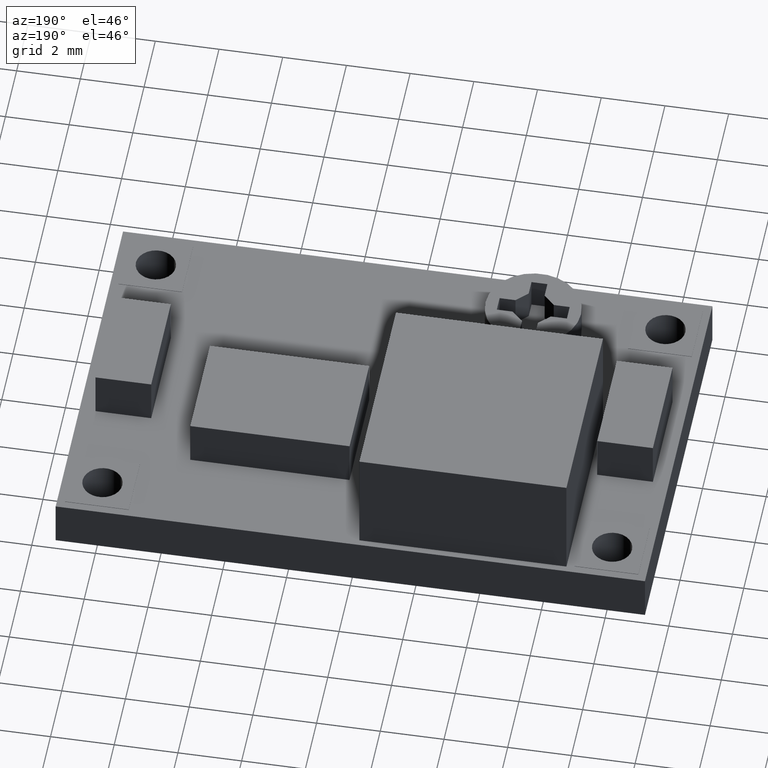
[diagram: clean part render]
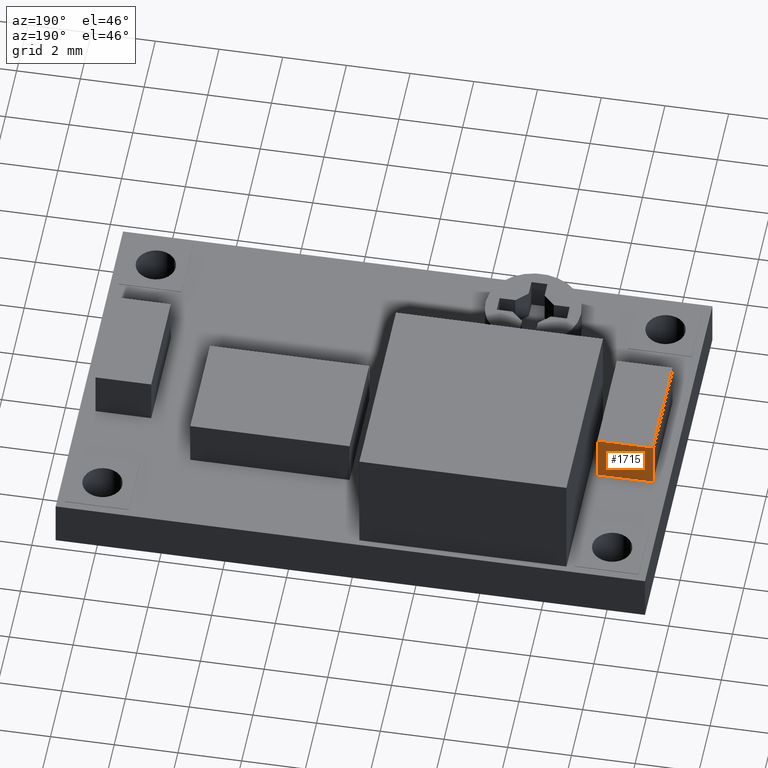
[diagram: same view with one face highlighted and labeled with its STEP entity id]
A machine part, auxiliary view. The second image highlights one B-rep face of the part: STEP entity #1715.
In plain terms, the highlighted planar face has unit normal (0, 1, 0).
Its self-contained STEP definition (entity closure, byte-faithful):
#120=FACE_OUTER_BOUND('',#218,.T.);
#218=EDGE_LOOP('',(#1343,#1344,#1345,#1346));
#415=LINE('',#2619,#624);
#416=LINE('',#2622,#625);
#417=LINE('',#2624,#626);
#418=LINE('',#2625,#627);
#624=VECTOR('',#2172,10.);
#625=VECTOR('',#2175,10.);
#626=VECTOR('',#2176,10.);
#627=VECTOR('',#2177,10.);
#784=VERTEX_POINT('',#2613);
#786=VERTEX_POINT('',#2617);
#787=VERTEX_POINT('',#2621);
#788=VERTEX_POINT('',#2623);
#989=EDGE_CURVE('',#784,#786,#415,.T.);
#990=EDGE_CURVE('',#784,#787,#416,.T.);
#991=EDGE_CURVE('',#788,#786,#417,.T.);
#992=EDGE_CURVE('',#787,#788,#418,.T.);
#1343=ORIENTED_EDGE('',*,*,#990,.F.);
#1344=ORIENTED_EDGE('',*,*,#989,.T.);
#1345=ORIENTED_EDGE('',*,*,#991,.F.);
#1346=ORIENTED_EDGE('',*,*,#992,.F.);
#1536=PLANE('',#1828);
#1715=ADVANCED_FACE('',(#120),#1536,.T.);
#1828=AXIS2_PLACEMENT_3D('',#2620,#2173,#2174);
#2172=DIRECTION('',(0.,-2.22044604925031E-16,1.));
#2173=DIRECTION('center_axis',(0.,1.,2.22044604925031E-16));
#2174=DIRECTION('ref_axis',(-1.,0.,0.));
#2175=DIRECTION('',(1.,0.,0.));
#2176=DIRECTION('',(-1.,0.,0.));
#2177=DIRECTION('',(0.,-2.22044604925031E-16,1.));
#2613=CARTESIAN_POINT('',(-8.75,-4.26,-4.49));
#2617=CARTESIAN_POINT('',(-8.75,-4.26,-2.99));
#2619=CARTESIAN_POINT('',(-8.75,-4.26,-4.49));
#2620=CARTESIAN_POINT('Origin',(-7.,-4.26,-4.49));
#2621=CARTESIAN_POINT('',(-7.,-4.26,-4.49));
#2622=CARTESIAN_POINT('',(-3.5,-4.26,-4.49));
#2623=CARTESIAN_POINT('',(-7.,-4.26,-2.99));
#2624=CARTESIAN_POINT('',(-8.75,-4.26,-2.99));
#2625=CARTESIAN_POINT('',(-7.,-4.26,-4.49));